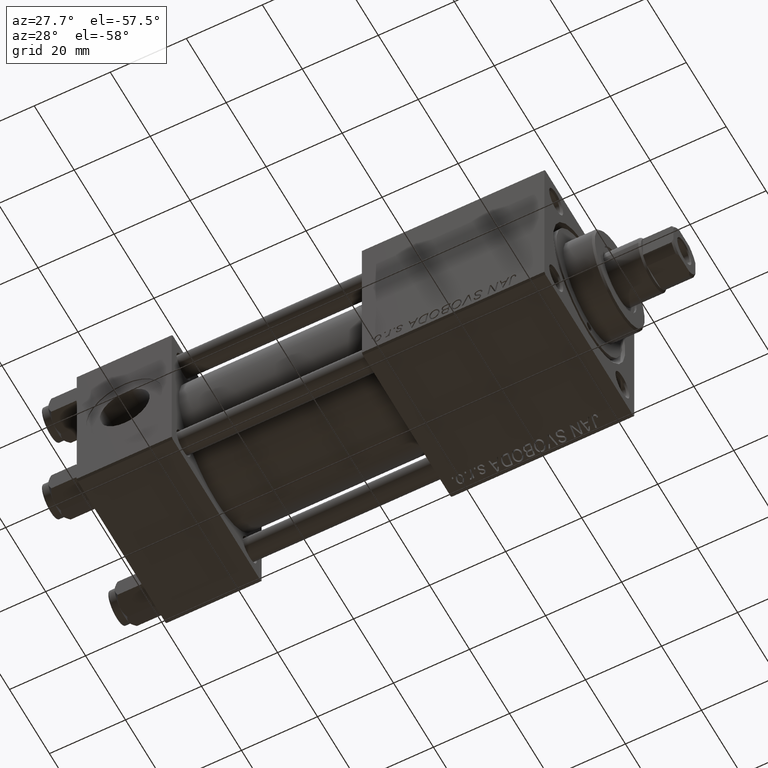
[diagram: clean part render]
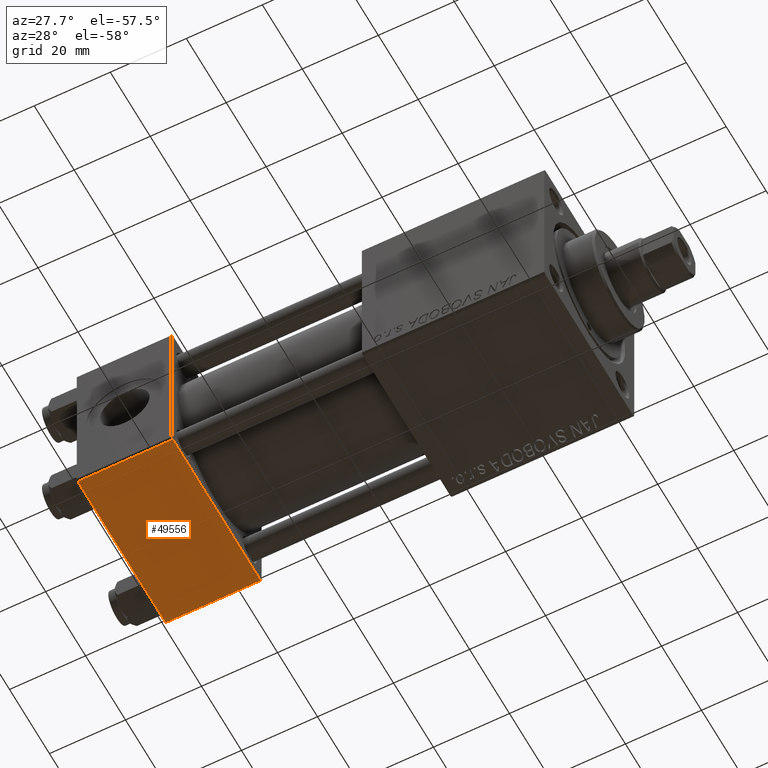
[diagram: same view with one face highlighted and labeled with its STEP entity id]
A machine part, auxiliary view. The second image highlights one B-rep face of the part: STEP entity #49556.
In plain terms, the highlighted planar face has unit normal (0, 0, -1).
Its self-contained STEP definition (entity closure, byte-faithful):
#641 = VECTOR ( 'NONE', #37356, 1000.000000000000000 ) ;
#2618 = CARTESIAN_POINT ( 'NONE',  ( 0.000000000000000000, 21.99999999999999289, -22.49999999999999645 ) ) ;
#3079 = VECTOR ( 'NONE', #46703, 1000.000000000000000 ) ;
#3581 = EDGE_LOOP ( 'NONE', ( #43082, #18403, #19297, #24514 ) ) ;
#4428 = CARTESIAN_POINT ( 'NONE',  ( 25.00000000000000000, 22.50000000000000000, -22.49999999999999645 ) ) ;
#5027 = PLANE ( 'NONE',  #27162 ) ;
#5278 = CARTESIAN_POINT ( 'NONE',  ( 25.00000000000000000, 22.50000000000000000, -22.49999999999999645 ) ) ;
#9125 = DIRECTION ( 'NONE',  ( 1.000000000000000000, 0.000000000000000000, 0.000000000000000000 ) ) ;
#9446 = DIRECTION ( 'NONE',  ( -1.000000000000000000, 0.000000000000000000, 0.000000000000000000 ) ) ;
#11003 = EDGE_CURVE ( 'NONE', #44764, #36192, #28716, .T. ) ;
#13920 = EDGE_CURVE ( 'NONE', #13981, #36685, #33353, .T. ) ;
#13963 = CARTESIAN_POINT ( 'NONE',  ( 0.000000000000000000, 22.50000000000000000, -22.49999999999999645 ) ) ;
#13981 = VERTEX_POINT ( 'NONE', #18603 ) ;
#18403 = ORIENTED_EDGE ( 'NONE', *, *, #11003, .T. ) ;
#18535 = LINE ( 'NONE', #13963, #641 ) ;
#18603 = CARTESIAN_POINT ( 'NONE',  ( 25.00000000000000000, -21.99999999999997158, -22.50000000000000711 ) ) ;
#18987 = LINE ( 'NONE', #4428, #3079 ) ;
#19297 = ORIENTED_EDGE ( 'NONE', *, *, #31573, .T. ) ;
#24514 = ORIENTED_EDGE ( 'NONE', *, *, #13920, .T. ) ;
#25094 = VECTOR ( 'NONE', #9125, 1000.000000000000000 ) ;
#27162 = AXIS2_PLACEMENT_3D ( 'NONE', #5278, #43498, #35597 ) ;
#28716 = LINE ( 'NONE', #31781, #25094 ) ;
#31220 = EDGE_CURVE ( 'NONE', #44764, #36685, #18535, .T. ) ;
#31573 = EDGE_CURVE ( 'NONE', #36192, #13981, #18987, .T. ) ;
#31703 = VECTOR ( 'NONE', #9446, 1000.000000000000000 ) ;
#31781 = CARTESIAN_POINT ( 'NONE',  ( 25.00000000000000000, 21.99999999999999289, -22.49999999999999645 ) ) ;
#33353 = LINE ( 'NONE', #48877, #31703 ) ;
#35597 = DIRECTION ( 'NONE',  ( 0.000000000000000000, 1.000000000000000000, 2.312964634635742957E-16 ) ) ;
#35854 = FACE_OUTER_BOUND ( 'NONE', #3581, .T. ) ;
#36192 = VERTEX_POINT ( 'NONE', #41108 ) ;
#36685 = VERTEX_POINT ( 'NONE', #46573 ) ;
#37356 = DIRECTION ( 'NONE',  ( 0.000000000000000000, -1.000000000000000000, -2.312964634635742957E-16 ) ) ;
#41108 = CARTESIAN_POINT ( 'NONE',  ( 25.00000000000000000, 21.99999999999999289, -22.49999999999999645 ) ) ;
#43082 = ORIENTED_EDGE ( 'NONE', *, *, #31220, .F. ) ;
#43498 = DIRECTION ( 'NONE',  ( 0.000000000000000000, 2.312964634635742957E-16, -1.000000000000000000 ) ) ;
#44764 = VERTEX_POINT ( 'NONE', #2618 ) ;
#46573 = CARTESIAN_POINT ( 'NONE',  ( 0.000000000000000000, -21.99999999999997158, -22.50000000000000711 ) ) ;
#46703 = DIRECTION ( 'NONE',  ( 0.000000000000000000, -1.000000000000000000, -2.312964634635742957E-16 ) ) ;
#48877 = CARTESIAN_POINT ( 'NONE',  ( 0.000000000000000000, -21.99999999999998579, -22.50000000000000711 ) ) ;
#49556 = ADVANCED_FACE ( 'NONE', ( #35854 ), #5027, .T. ) ;